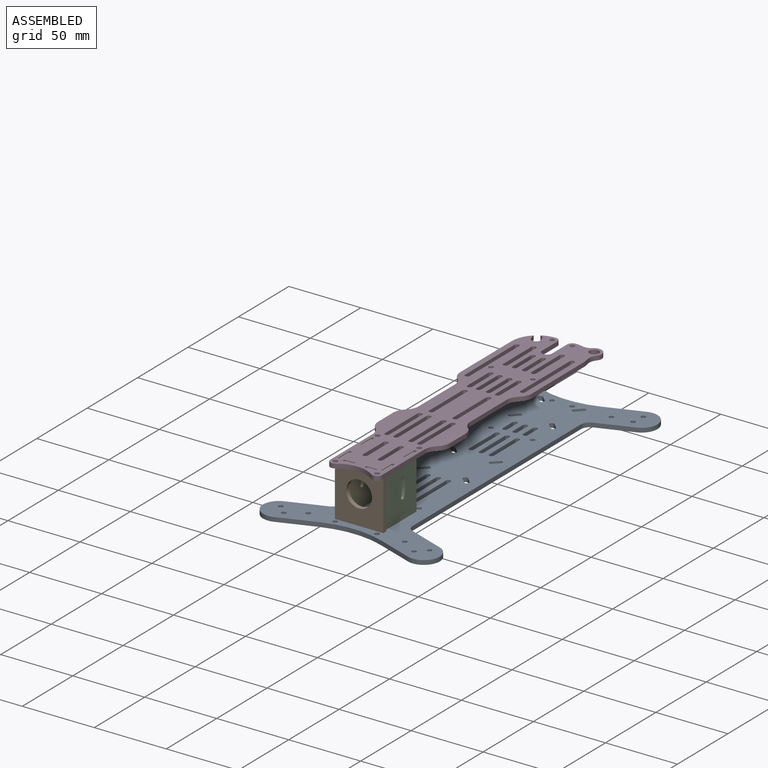
[diagram: assembled view]
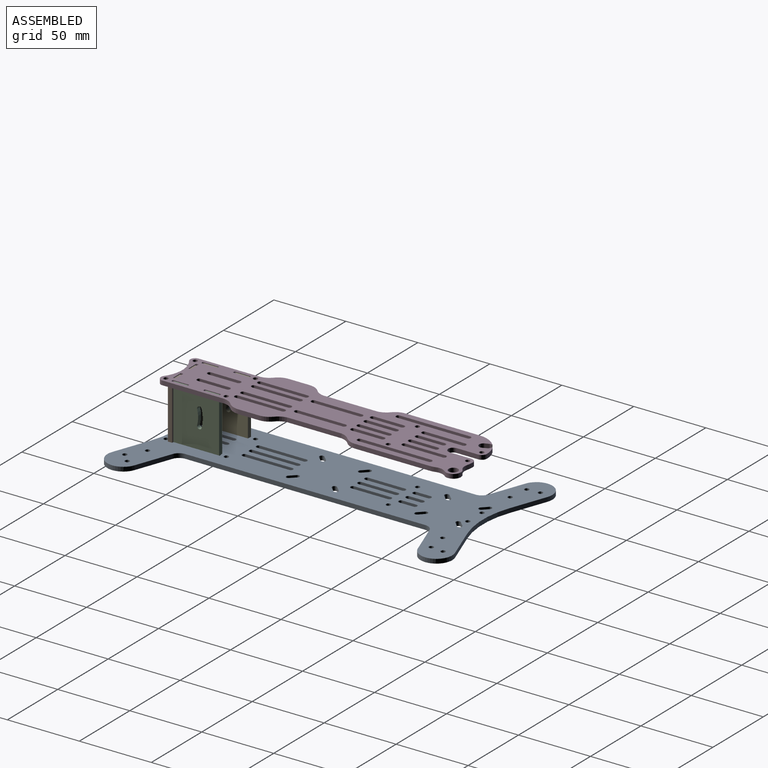
[diagram: assembled view, second angle]
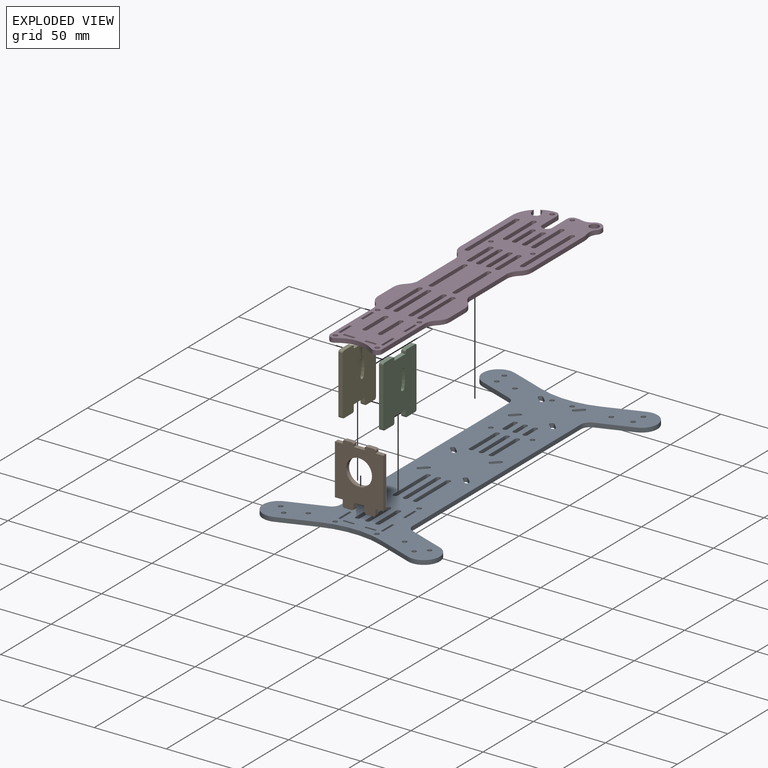
[diagram: exploded view]
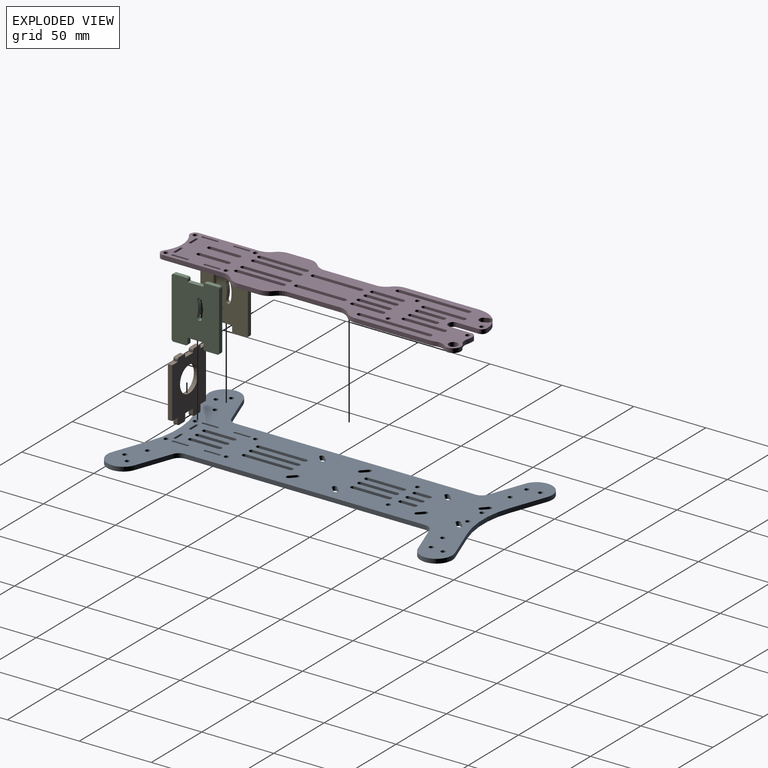
[diagram: exploded view, second angle]
ASSEMBLY  parts=5 mates=4
PART A: 146 faces, bbox 122.7x239x3 mm
  f0: cylinder r=1.57mm len=3.15mm, axis (0,0,-1), area 14.8mm2, adj f1,f99,f144,f145
  f1: plane 25.48x3mm, normal (1,0,0), area 76.4mm2, adj f0,f2,f144,f145
  f2: cylinder r=1.57mm len=3.15mm, axis (0,0,-1), area 14.8mm2, adj f1,f99,f144,f145
  f3: plane 25.48x3mm, normal (1,0,0), area 76.4mm2, adj f4,f100,f144,f145
  f4: cylinder r=1.57mm len=3.15mm, axis (0,0,-1), area 14.8mm2, adj f3,f5,f144,f145
  f5: plane 25.48x3mm, normal (-1,0,0), area 76.4mm2, adj f4,f100,f144,f145
  f6: plane 25.48x3mm, normal (1,0,0), area 76.4mm2, adj f7,f101,f144,f145
  f7: cylinder r=1.57mm len=3.15mm, axis (0,0,-1), area 14.8mm2, adj f6,f8,f144,f145
  f8: plane 25.48x3mm, normal (-1,0,0), area 76.4mm2, adj f7,f101,f144,f145
  f9: cylinder r=1.57mm len=3.15mm, axis (0,0,-1), area 14.8mm2, adj f10,f102,f144,f145
  f10: plane 9.78x3mm, normal (-1,0,0), area 29.4mm2, adj f9,f11,f144,f145
  f11: cylinder r=1.57mm len=3.15mm, axis (0,0,-1), area 14.8mm2, adj f10,f102,f144,f145
  f12: cylinder r=1.57mm len=3mm, axis (0,0,-1), area 14.8mm2, adj f13,f106,f144,f145
  f13: plane 3.54x3.54mm, normal (0.71,0.71,0), area 15mm2, adj f12,f14,f144,f145
  f14: cylinder r=1.57mm len=3mm, axis (0,0,-1), area 14.8mm2, adj f13,f106,f144,f145
  f15: cylinder r=1.57mm len=3mm, axis (0,0,-1), area 14.8mm2, adj f16,f108,f144,f145
  f16: plane 3.54x3.54mm, normal (0.71,0.71,0), area 15mm2, adj f15,f17,f144,f145
  f17: cylinder r=1.57mm len=3mm, axis (0,0,-1), area 14.8mm2, adj f16,f108,f144,f145
  f18: plane 3.54x3.54mm, normal (-0.71,0.71,0), area 15mm2, adj f19,f109,f144,f145
  f19: cylinder r=1.57mm len=3mm, axis (0,0,-1), area 14.8mm2, adj f18,f20,f144,f145
  f20: plane 3.54x3.54mm, normal (0.71,-0.71,0), area 15mm2, adj f19,f109,f144,f145
  f21: plane 20.23x3mm, normal (1,0,0), area 60.7mm2, adj f22,f116,f144,f145
  f22: cylinder r=1.57mm len=3.15mm, axis (0,0,-1), area 14.8mm2, adj f21,f23,f144,f145
  f23: plane 20.23x3mm, normal (-1,0,0), area 60.7mm2, adj f22,f116,f144,f145
  f24: plane 3.54x3.54mm, normal (-0.71,0.71,0), area 15mm2, adj f25,f120,f144,f145
  f25: cylinder r=1.57mm len=3mm, axis (0,0,-1), area 14.8mm2, adj f24,f26,f144,f145
  f26: plane 3.54x3.54mm, normal (0.71,-0.71,0), area 15mm2, adj f25,f120,f144,f145
  f27: cylinder r=1.57mm len=3.15mm, axis (0,0,-1), area 14.8mm2, adj f28,f121,f144,f145
  f28: plane 32.3x3mm, normal (-1,0,0), area 96.9mm2, adj f27,f29,f144,f145
  f29: cylinder r=1.57mm len=3.15mm, axis (0,0,-1), area 14.8mm2, adj f28,f121,f144,f145
  f30: plane 32.3x3mm, normal (-1,0,0), area 96.9mm2, adj f31,f122,f144,f145
  f31: cylinder r=1.57mm len=3.15mm, axis (0,0,-1), area 14.8mm2, adj f30,f32,f144,f145
  f32: plane 32.3x3mm, normal (1,0,0), area 96.9mm2, adj f31,f122,f144,f145
  f33: cylinder r=1.57mm len=3.15mm, axis (0,0,-1), area 14.8mm2, adj f34,f123,f144,f145
  f34: plane 32.3x3mm, normal (1,0,0), area 96.9mm2, adj f33,f35,f144,f145
  f35: cylinder r=1.57mm len=3.15mm, axis (0,0,-1), area 14.8mm2, adj f34,f123,f144,f145
  f36: plane 3x1.65mm, normal (0,1,0), area 4.9mm2, adj f37,f124,f144,f145
  f37: plane 11.3x3mm, normal (1,0,0), area 33.9mm2, adj f36,f38,f144,f145
  f38: plane 3x1.65mm, normal (0,-1,0), area 4.9mm2, adj f37,f124,f144,f145
  f39: plane 3x1.65mm, normal (0,1,0), area 4.9mm2, adj f40,f125,f144,f145
  f40: plane 11.3x3mm, normal (1,0,0), area 33.9mm2, adj f39,f41,f144,f145
  f41: plane 3x1.65mm, normal (0,-1,0), area 4.9mm2, adj f40,f125,f144,f145
  f42: cylinder r=1.57mm len=3mm, axis (0,0,-1), area 14.8mm2, adj f43,f127,f144,f145
  f43: plane 3.54x3.54mm, normal (-0.71,-0.71,0), area 15mm2, adj f42,f44,f144,f145
  f44: cylinder r=1.57mm len=3mm, axis (0,0,-1), area 14.8mm2, adj f43,f127,f144,f145
  f45: plane 3.54x3.54mm, normal (0.71,-0.71,0), area 15mm2, adj f46,f128,f144,f145
  f46: cylinder r=1.57mm len=3mm, axis (0,0,-1), area 14.8mm2, adj f45,f47,f144,f145
  f47: plane 3.54x3.54mm, normal (-0.71,0.71,0), area 15mm2, adj f46,f128,f144,f145
  f48: cylinder r=1.57mm len=3.15mm, axis (0,0,-1), area 14.8mm2, adj f49,f129,f144,f145
  f49: plane 9.78x3mm, normal (-1,0,0), area 29.4mm2, adj f48,f50,f144,f145
  f50: cylinder r=1.57mm len=3.15mm, axis (0,0,-1), area 14.8mm2, adj f49,f129,f144,f145
  f51: plane 9.78x3mm, normal (1,0,0), area 29.4mm2, adj f52,f130,f144,f145
  f52: cylinder r=1.57mm len=3.15mm, axis (0,0,-1), area 14.8mm2, adj f51,f53,f144,f145
  f53: plane 9.78x3mm, normal (-1,0,0), area 29.4mm2, adj f52,f130,f144,f145
  f54: plane 3.54x3.54mm, normal (0.71,0.71,0), area 15mm2, adj f55,f131,f144,f145
  f55: cylinder r=1.57mm len=3mm, axis (0,0,-1), area 14.8mm2, adj f54,f56,f144,f145
  f56: plane 3.54x3.54mm, normal (-0.71,-0.71,0), area 15mm2, adj f55,f131,f144,f145
  f57: cylinder r=1.57mm len=3mm, axis (0,0,-1), area 14.8mm2, adj f58,f132,f144,f145
  f58: plane 3.54x3.54mm, normal (0.71,-0.71,0), area 15mm2, adj f57,f59,f144,f145
  f59: cylinder r=1.57mm len=3mm, axis (0,0,-1), area 14.8mm2, adj f58,f132,f144,f145
  f60: plane 24.31x8.85mm, normal (0.34,-0.94,0), area 77.6mm2, adj f61,f136,f144,f145
  f61: cylinder r=11mm len=21.34mm, axis (0,0,-1), area 103.7mm2, adj f60,f62,f144,f145
  f62: plane 24.99x9.1mm, normal (-0.34,0.94,0), area 79.8mm2, adj f61,f63,f144,f145
  f63: cylinder r=61.1mm len=41.79mm, axis (0,0,-1), area 128mm2, adj f62,f64,f144,f145
  f64: plane 24.99x9.1mm, normal (0.34,0.94,0), area 79.8mm2, adj f63,f65,f144,f145
  f65: cylinder r=11mm len=21.34mm, axis (0,0,-1), area 103.7mm2, adj f64,f66,f144,f145
  f66: plane 24.31x8.85mm, normal (-0.34,-0.94,0), area 77.6mm2, adj f65,f67,f144,f145
  f67: cylinder r=6.24mm len=5.86mm, axis (0,0,-1), area 22.9mm2, adj f66,f68,f144,f145
  f68: plane 166.67x3mm, normal (-1,0,0), area 500mm2, adj f67,f69,f144,f145
  f69: cylinder r=6.24mm len=5.86mm, axis (0,0,-1), area 22.9mm2, adj f68,f70,f144,f145
  f70: plane 24.99x9.1mm, normal (-0.34,0.94,0), area 79.8mm2, adj f69,f71,f144,f145
  f71: cylinder r=11mm len=21.34mm, axis (0,0,-1), area 103.7mm2, adj f70,f72,f144,f145
  f72: plane 24.99x9.1mm, normal (0.34,-0.94,0), area 79.8mm2, adj f71,f73,f144,f145
  f73: cylinder r=63.1mm len=43.16mm, axis (0,0,-1), area 132.1mm2, adj f72,f74,f144,f145
  f74: plane 24.99x9.1mm, normal (-0.34,-0.94,0), area 79.8mm2, adj f73,f75,f144,f145
  f75: cylinder r=11mm len=21.34mm, axis (0,0,-1), area 103.7mm2, adj f74,f76,f144,f145
  f76: plane 24.99x9.1mm, normal (0.34,0.94,0), area 79.8mm2, adj f75,f77,f144,f145
  f77: cylinder r=6.24mm len=5.86mm, axis (0,0,-1), area 22.9mm2, adj f76,f78,f144,f145
  f78: plane 166.67x3mm, normal (1,0,0), area 500mm2, adj f77,f136,f144,f145
  f79: plane 3x1.65mm, normal (1,0,0), area 5mm2, adj f80,f137,f144,f145
  f80: plane 7.65x3mm, normal (0,-1,0), area 23mm2, adj f79,f81,f144,f145
  f81: plane 3x1.65mm, normal (-1,0,0), area 5mm2, adj f80,f137,f144,f145
  f82: plane 20.23x3mm, normal (-1,0,0), area 60.7mm2, adj f83,f138,f144,f145
  f83: cylinder r=1.57mm len=3.15mm, axis (0,0,-1), area 14.8mm2, adj f82,f84,f144,f145
  f84: plane 20.23x3mm, normal (1,0,0), area 60.7mm2, adj f83,f138,f144,f145
  f85: plane 7.65x3mm, normal (0,-1,0), area 23mm2, adj f86,f139,f144,f145
  f86: plane 3x1.65mm, normal (-1,0,0), area 5mm2, adj f85,f87,f144,f145
  f87: plane 7.65x3mm, normal (0,1,0), area 23mm2, adj f86,f139,f144,f145
  f88: plane 11.3x3mm, normal (-1,0,0), area 33.9mm2, adj f89,f140,f144,f145
  f89: plane 3x1.65mm, normal (0,1,0), area 4.9mm2, adj f88,f90,f144,f145
  f90: plane 11.3x3mm, normal (1,0,0), area 33.9mm2, adj f89,f140,f144,f145
  f91: plane 3x1.65mm, normal (0,-1,0), area 4.9mm2, adj f92,f141,f144,f145
  f92: plane 11.3x3mm, normal (-1,0,0), area 33.9mm2, adj f91,f93,f144,f145
  f93: plane 3x1.65mm, normal (0,1,0), area 4.9mm2, adj f92,f141,f144,f145
  f94: cylinder r=1.57mm len=3.15mm, axis (0,0,-1), area 14.8mm2, adj f95,f142,f144,f145
  f95: plane 20.23x3mm, normal (-1,0,0), area 60.7mm2, adj f94,f96,f144,f145
  f96: cylinder r=1.57mm len=3.15mm, axis (0,0,-1), area 14.8mm2, adj f95,f142,f144,f145
  f97: cylinder r=1.57mm len=3.15mm, axis (0,0,-1), area 29.7mm2, adj f144,f145
  f98: cylinder r=1.57mm len=3.15mm, axis (0,0,-1), area 29.7mm2, adj f144,f145
  f99: plane 25.48x3mm, normal (-1,0,0), area 76.4mm2, adj f0,f2,f144,f145
  f100: cylinder r=1.57mm len=3.15mm, axis (0,0,-1), area 14.8mm2, adj f3,f5,f144,f145
  f101: cylinder r=1.57mm len=3.15mm, axis (0,0,-1), area 14.8mm2, adj f6,f8,f144,f145
  f102: plane 9.78x3mm, normal (1,0,0), area 29.4mm2, adj f9,f11,f144,f145
  f103: cylinder r=1.57mm len=3.15mm, axis (0,0,-1), area 29.7mm2, adj f144,f145
  f104: cylinder r=1.57mm len=3.15mm, axis (0,0,-1), area 29.7mm2, adj f144,f145
  f105: cylinder r=1.57mm len=3.15mm, axis (0,0,-1), area 29.7mm2, adj f144,f145
  f106: plane 3.54x3.54mm, normal (-0.71,-0.71,0), area 15mm2, adj f12,f14,f144,f145
  f107: cylinder r=1.57mm len=3.15mm, axis (0,0,-1), area 29.7mm2, adj f144,f145
  f108: plane 3.54x3.54mm, normal (-0.71,-0.71,0), area 15mm2, adj f15,f17,f144,f145
  f109: cylinder r=1.57mm len=3mm, axis (0,0,-1), area 14.8mm2, adj f18,f20,f144,f145
  f110: cylinder r=1.57mm len=3.15mm, axis (0,0,-1), area 29.7mm2, adj f144,f145
  f111: cylinder r=1.57mm len=3.15mm, axis (0,0,-1), area 29.7mm2, adj f144,f145
  f112: cylinder r=1.57mm len=3.15mm, axis (0,0,-1), area 29.7mm2, adj f144,f145
  f113: cylinder r=1.57mm len=3.15mm, axis (0,0,-1), area 29.7mm2, adj f144,f145
  f114: cylinder r=1.57mm len=3.15mm, axis (0,0,-1), area 29.7mm2, adj f144,f145
  f115: cylinder r=1.57mm len=3.15mm, axis (0,0,-1), area 29.7mm2, adj f144,f145
  f116: cylinder r=1.57mm len=3.15mm, axis (0,0,-1), area 14.8mm2, adj f21,f23,f144,f145
  f117: cylinder r=1.57mm len=3.15mm, axis (0,0,-1), area 29.7mm2, adj f144,f145
  f118: cylinder r=1.57mm len=3.15mm, axis (0,0,-1), area 29.7mm2, adj f144,f145
  f119: cylinder r=1.57mm len=3.15mm, axis (0,0,-1), area 29.7mm2, adj f144,f145
  f120: cylinder r=1.57mm len=3mm, axis (0,0,-1), area 14.8mm2, adj f24,f26,f144,f145
  f121: plane 32.3x3mm, normal (1,0,0), area 96.9mm2, adj f27,f29,f144,f145
  f122: cylinder r=1.57mm len=3.15mm, axis (0,0,-1), area 14.8mm2, adj f30,f32,f144,f145
  f123: plane 32.3x3mm, normal (-1,0,0), area 96.9mm2, adj f33,f35,f144,f145
  f124: plane 11.3x3mm, normal (-1,0,0), area 33.9mm2, adj f36,f38,f144,f145
  f125: plane 11.3x3mm, normal (-1,0,0), area 33.9mm2, adj f39,f41,f144,f145
  f126: cylinder r=1.57mm len=3.15mm, axis (0,0,-1), area 29.7mm2, adj f144,f145
  f127: plane 3.54x3.54mm, normal (0.71,0.71,0), area 15mm2, adj f42,f44,f144,f145
  f128: cylinder r=1.57mm len=3mm, axis (0,0,-1), area 14.8mm2, adj f45,f47,f144,f145
  f129: plane 9.78x3mm, normal (1,0,0), area 29.4mm2, adj f48,f50,f144,f145
  f130: cylinder r=1.57mm len=3.15mm, axis (0,0,-1), area 14.8mm2, adj f51,f53,f144,f145
  f131: cylinder r=1.57mm len=3mm, axis (0,0,-1), area 14.8mm2, adj f54,f56,f144,f145
  f132: plane 3.54x3.54mm, normal (-0.71,0.71,0), area 15mm2, adj f57,f59,f144,f145
  f133: cylinder r=1.57mm len=3.15mm, axis (0,0,-1), area 29.7mm2, adj f144,f145
  f134: cylinder r=1.57mm len=3.15mm, axis (0,0,-1), area 29.7mm2, adj f144,f145
  f135: cylinder r=1.57mm len=3.15mm, axis (0,0,-1), area 29.7mm2, adj f144,f145
  f136: cylinder r=6.24mm len=5.86mm, axis (0,0,-1), area 22.9mm2, adj f60,f78,f144,f145
  f137: plane 7.65x3mm, normal (0,1,0), area 23mm2, adj f79,f81,f144,f145
  f138: cylinder r=1.57mm len=3.15mm, axis (0,0,-1), area 14.8mm2, adj f82,f84,f144,f145
  f139: plane 3x1.65mm, normal (1,0,0), area 5mm2, adj f85,f87,f144,f145
  f140: plane 3x1.65mm, normal (0,-1,0), area 4.9mm2, adj f88,f90,f144,f145
  f141: plane 11.3x3mm, normal (1,0,0), area 33.9mm2, adj f91,f93,f144,f145
  f142: plane 20.23x3mm, normal (1,0,0), area 60.7mm2, adj f94,f96,f144,f145
  f143: cylinder r=1.57mm len=3.15mm, axis (0,0,-1), area 29.7mm2, adj f144,f145
  f144: plane 239.01x122.67mm, normal (0,0,1), area 12518.7mm2, adj f0,f1,f2,f3,f4,f5,f6,f7
  f145: plane 239.01x122.67mm, normal (0,0,-1), area 12518.7mm2, adj f0,f1,f2,f3,f4,f5,f6,f7
PART B: 31 faces, bbox 33.6x3x42.5 mm
  f0: plane 5.45x3mm, normal (0,0,-1), area 16.3mm2, adj f1,f27,f29,f30
  f1: plane 35x3mm, normal (1,0,0), area 105mm2, adj f0,f2,f29,f30
  f2: plane 5.45x3mm, normal (0,0,1), area 16.3mm2, adj f1,f3,f29,f30
  f3: plane 3x1.25mm, normal (1,0,0), area 3.7mm2, adj f2,f4,f29,f30
  f4: cylinder r=1.25mm len=3mm, axis (0,1,0), area 5.9mm2, adj f3,f5,f29,f30
  f5: plane 5x3mm, normal (0,0,1), area 15mm2, adj f4,f6,f29,f30
  f6: cylinder r=1.25mm len=3mm, axis (0,1,0), area 5.9mm2, adj f5,f7,f29,f30
  f7: plane 3x1.25mm, normal (-1,0,0), area 3.7mm2, adj f6,f8,f29,f30
  f8: plane 7.7x3mm, normal (0,0,1), area 23.1mm2, adj f7,f9,f29,f30
  f9: plane 3x1.25mm, normal (1,0,0), area 3.7mm2, adj f8,f10,f29,f30
  f10: cylinder r=1.25mm len=3mm, axis (0,1,0), area 5.9mm2, adj f9,f11,f29,f30
  f11: plane 5x3mm, normal (0,0,1), area 15mm2, adj f10,f12,f29,f30
  f12: cylinder r=1.25mm len=3mm, axis (0,1,0), area 5.9mm2, adj f11,f13,f29,f30
  f13: plane 3x1.25mm, normal (-1,0,0), area 3.7mm2, adj f12,f14,f29,f30
  f14: plane 5.45x3mm, normal (0,0,1), area 16.3mm2, adj f13,f15,f29,f30
  f15: plane 35x3mm, normal (-1,0,0), area 105mm2, adj f14,f16,f29,f30
  f16: plane 5.45x3mm, normal (0,0,-1), area 16.3mm2, adj f15,f17,f29,f30
  f17: plane 3.75x3mm, normal (-1,0,0), area 11.2mm2, adj f16,f18,f29,f30
  f18: cylinder r=1.25mm len=3mm, axis (0,1,0), area 5.9mm2, adj f17,f19,f29,f30
  f19: plane 5x3mm, normal (0,0,-1), area 15mm2, adj f18,f20,f29,f30
  f20: cylinder r=1.25mm len=3mm, axis (0,1,0), area 5.9mm2, adj f19,f21,f29,f30
  f21: plane 3.75x3mm, normal (1,0,0), area 11.2mm2, adj f20,f22,f29,f30
  f22: plane 7.7x3mm, normal (0,0,-1), area 23.1mm2, adj f21,f23,f29,f30
  f23: plane 3.75x3mm, normal (-1,0,0), area 11.2mm2, adj f22,f24,f29,f30
  f24: cylinder r=1.25mm len=3mm, axis (0,1,0), area 5.9mm2, adj f23,f25,f29,f30
  f25: plane 5x3mm, normal (0,0,-1), area 15mm2, adj f24,f26,f29,f30
  f26: cylinder r=1.25mm len=3mm, axis (0,1,0), area 5.9mm2, adj f25,f27,f29,f30
  f27: plane 3.75x3mm, normal (1,0,0), area 11.2mm2, adj f0,f26,f29,f30
  f28: cylinder r=9mm len=18mm, axis (0,1,0), area 169.6mm2, adj f29,f30
  f29: plane 42.5x33.6mm, normal (0,-1,0), area 1031.3mm2, adj f0,f1,f2,f3,f4,f5,f6,f7
  f30: plane 42.5x33.6mm, normal (0,1,0), area 1031.3mm2, adj f0,f1,f2,f3,f4,f5,f6,f7
PART C: 29 faces, bbox 3x33x42.5 mm
  f0: plane 11x3mm, normal (0,0,-1), area 33mm2, adj f1,f26,f27,f28
  f1: plane 3.75x3mm, normal (0,-1,0), area 11.3mm2, adj f0,f2,f27,f28
  f2: cylinder r=1.25mm len=3mm, axis (-1,0,0), area 6.1mm2, adj f1,f3,f27,f28
  f3: plane 8.5x3mm, normal (0,0,-1), area 25.5mm2, adj f2,f4,f27,f28
  f4: cylinder r=1.25mm len=3mm, axis (-1,0,0), area 5.7mm2, adj f3,f5,f27,f28
  f5: plane 40x3mm, normal (0,1,0), area 120mm2, adj f4,f6,f27,f28
  f6: cylinder r=1.25mm len=3mm, axis (-1,0,0), area 5.9mm2, adj f5,f7,f27,f28
  f7: plane 8.5x3mm, normal (0,0,1), area 25.5mm2, adj f6,f8,f27,f28
  f8: cylinder r=1.25mm len=3mm, axis (-1,0,0), area 5.9mm2, adj f7,f9,f27,f28
  f9: plane 3x1.25mm, normal (0,-1,0), area 3.7mm2, adj f8,f10,f27,f28
  f10: plane 11x3mm, normal (0,0,1), area 33mm2, adj f9,f11,f27,f28
  f11: plane 3x1.25mm, normal (0,1,0), area 3.7mm2, adj f10,f12,f27,f28
  f12: cylinder r=1.25mm len=3mm, axis (-1,0,0), area 5.9mm2, adj f11,f13,f27,f28
  f13: plane 8.5x3mm, normal (0,0,1), area 25.5mm2, adj f12,f14,f27,f28
  f14: cylinder r=1.25mm len=3mm, axis (-1,0,0), area 5.9mm2, adj f13,f15,f27,f28
  f15: plane 40x3mm, normal (0,-1,0), area 120mm2, adj f14,f16,f27,f28
  f16: cylinder r=1.25mm len=3mm, axis (-1,0,0), area 5.9mm2, adj f15,f17,f27,f28
  f17: plane 8.5x3mm, normal (0,0,-1), area 25.5mm2, adj f16,f18,f27,f28
  f18: cylinder r=1.25mm len=3mm, axis (-1,0,0), area 5.9mm2, adj f17,f26,f27,f28
  f19: plane 3x0.03mm, normal (0,0.28,-0.96), area 0.1mm2, adj f20,f24,f27,f28
  f20: plane 3x0.02mm, normal (0,-0.28,-0.96), area 0.1mm2, adj f19,f24,f27,f28
  f21: cylinder r=18.38mm len=10.12mm, axis (-1,0,0), area 30.7mm2, adj f22,f25,f27,f28
  f22: cylinder r=1.62mm len=3.19mm, axis (-1,0,0), area 15.3mm2, adj f21,f23,f27,f28
  f23: cylinder r=21.64mm len=11.91mm, axis (-1,0,0), area 36.2mm2, adj f22,f25,f27,f28
  f24: plane 3x0.05mm, normal (0,-0.02,1), area 0.2mm2, adj f19,f20,f27,f28
  f25: cylinder r=1.62mm len=3.19mm, axis (-1,0,0), area 15.3mm2, adj f21,f23,f27,f28
  f26: plane 3.75x3mm, normal (0,1,0), area 11.3mm2, adj f0,f18,f27,f28
  f27: plane 42.5x33mm, normal (1,0,0), area 1272.8mm2, adj f0,f1,f2,f3,f4,f5,f6,f7
  f28: plane 42.5x33mm, normal (-1,0,0), area 1272.8mm2, adj f0,f1,f2,f3,f4,f5,f6,f7
PART D: 151 faces, bbox 52.1x213.5x3 mm
  f0: plane 20.83x3mm, normal (1,0,0), area 62.5mm2, adj f1,f148,f149,f150
  f1: cylinder r=1.57mm len=3.15mm, axis (0,0,-1), area 14.8mm2, adj f0,f2,f149,f150
  f2: plane 20.83x3mm, normal (-1,0,0), area 62.5mm2, adj f1,f148,f149,f150
  f3: plane 18.07x3mm, normal (1,0,0), area 54.2mm2, adj f4,f115,f149,f150
  f4: cylinder r=1.57mm len=3.15mm, axis (0,0,-1), area 14.8mm2, adj f3,f5,f149,f150
  f5: plane 18.07x3mm, normal (-1,0,0), area 54.2mm2, adj f4,f115,f149,f150
  f6: plane 20.83x3mm, normal (-1,0,0), area 62.5mm2, adj f7,f116,f149,f150
  f7: cylinder r=1.57mm len=3.15mm, axis (0,0,-1), area 14.8mm2, adj f6,f8,f149,f150
  f8: plane 20.83x3mm, normal (1,0,0), area 62.5mm2, adj f7,f116,f149,f150
  f9: cylinder r=1.57mm len=3.15mm, axis (0,0,-1), area 14.8mm2, adj f10,f117,f149,f150
  f10: plane 49x3mm, normal (1,0,0), area 147mm2, adj f9,f11,f149,f150
  f11: cylinder r=1.57mm len=3.15mm, axis (0,0,-1), area 14.8mm2, adj f10,f117,f149,f150
  f12: cylinder r=1.65mm len=3.3mm, axis (0,0,-1), area 18.5mm2, adj f13,f118,f149,f150
  f13: plane 27.29x3mm, normal (-1,0,0), area 81.9mm2, adj f12,f14,f149,f150
  f14: cylinder r=1.57mm len=3.15mm, axis (0,0,-1), area 14.8mm2, adj f13,f118,f149,f150
  f15: plane 20.83x3mm, normal (-1,0,0), area 62.5mm2, adj f16,f121,f149,f150
  f16: cylinder r=1.57mm len=3.15mm, axis (0,0,-1), area 14.8mm2, adj f15,f17,f149,f150
  f17: plane 20.83x3mm, normal (1,0,0), area 62.5mm2, adj f16,f121,f149,f150
  f18: plane 27.29x3mm, normal (-1,0,0), area 81.9mm2, adj f19,f122,f149,f150
  f19: cylinder r=1.57mm len=3.15mm, axis (0,0,-1), area 14.8mm2, adj f18,f20,f149,f150
  f20: plane 27.29x3mm, normal (1,0,0), area 81.9mm2, adj f19,f122,f149,f150
  f21: plane 20.83x3mm, normal (-1,0,0), area 62.5mm2, adj f22,f123,f149,f150
  f22: cylinder r=1.57mm len=3.15mm, axis (0,0,-1), area 14.8mm2, adj f21,f23,f149,f150
  f23: plane 20.83x3mm, normal (1,0,0), area 62.5mm2, adj f22,f123,f149,f150
  f24: plane 49x3mm, normal (-1,0,0), area 147mm2, adj f25,f124,f149,f150
  f25: cylinder r=1.57mm len=3.15mm, axis (0,0,-1), area 14.8mm2, adj f24,f26,f149,f150
  f26: plane 49x3mm, normal (1,0,0), area 147mm2, adj f25,f124,f149,f150
  f27: plane 18.07x3mm, normal (-1,0,0), area 54.2mm2, adj f28,f125,f149,f150
  f28: cylinder r=1.57mm len=3.15mm, axis (0,0,-1), area 14.8mm2, adj f27,f29,f149,f150
  f29: plane 18.07x3mm, normal (1,0,0), area 54.2mm2, adj f28,f125,f149,f150
  f30: plane 20.25x3mm, normal (1,0,0), area 60.8mm2, adj f31,f129,f149,f150
  f31: cylinder r=1.57mm len=3.15mm, axis (0,0,-1), area 14.8mm2, adj f30,f32,f149,f150
  f32: plane 20.25x3mm, normal (-1,0,0), area 60.8mm2, adj f31,f129,f149,f150
  f33: plane 11.3x3mm, normal (-1,0,0), area 33.9mm2, adj f34,f130,f149,f150
  f34: plane 3x1.65mm, normal (0,1,0), area 5mm2, adj f33,f35,f149,f150
  f35: plane 11.3x3mm, normal (1,0,0), area 33.9mm2, adj f34,f130,f149,f150
  f36: plane 7.65x3mm, normal (0,-1,0), area 22.9mm2, adj f37,f131,f149,f150
  f37: plane 3x1.65mm, normal (-1,0,0), area 4.9mm2, adj f36,f38,f149,f150
  f38: plane 7.65x3mm, normal (0,1,0), area 22.9mm2, adj f37,f131,f149,f150
  f39: plane 11.3x3mm, normal (-1,0,0), area 33.9mm2, adj f40,f133,f149,f150
  f40: plane 3x1.65mm, normal (0,1,0), area 5mm2, adj f39,f41,f149,f150
  f41: plane 11.3x3mm, normal (1,0,0), area 33.9mm2, adj f40,f133,f149,f150
  f42: plane 7.65x3mm, normal (0,-1,0), area 22.9mm2, adj f43,f134,f149,f150
  f43: plane 3x1.65mm, normal (-1,0,0), area 4.9mm2, adj f42,f44,f149,f150
  f44: plane 7.65x3mm, normal (0,1,0), area 22.9mm2, adj f43,f134,f149,f150
  f45: cylinder r=1.57mm len=3.15mm, axis (0,0,-1), area 14.8mm2, adj f46,f136,f149,f150
  f46: plane 32.41x3mm, normal (-1,0,0), area 97.2mm2, adj f45,f47,f149,f150
  f47: cylinder r=1.57mm len=3.15mm, axis (0,0,-1), area 14.8mm2, adj f46,f136,f149,f150
  f48: plane 32.41x3mm, normal (1,0,0), area 97.2mm2, adj f49,f137,f149,f150
  f49: cylinder r=1.57mm len=3.15mm, axis (0,0,-1), area 14.8mm2, adj f48,f50,f149,f150
  f50: plane 32.41x3mm, normal (-1,0,0), area 97.2mm2, adj f49,f137,f149,f150
  f51: plane 3x1.65mm, normal (0,1,0), area 5mm2, adj f52,f138,f149,f150
  f52: plane 11.3x3mm, normal (1,0,0), area 33.9mm2, adj f51,f53,f149,f150
  f53: plane 3x1.65mm, normal (0,-1,0), area 5mm2, adj f52,f138,f149,f150
  f54: plane 11.3x3mm, normal (1,0,0), area 33.9mm2, adj f55,f140,f149,f150
  f55: plane 3x1.65mm, normal (0,-1,0), area 5mm2, adj f54,f56,f149,f150
  f56: plane 11.3x3mm, normal (-1,0,0), area 33.9mm2, adj f55,f140,f149,f150
  f57: plane 20.25x3mm, normal (1,0,0), area 60.8mm2, adj f58,f141,f149,f150
  f58: cylinder r=1.57mm len=3.15mm, axis (0,0,-1), area 14.8mm2, adj f57,f59,f149,f150
  f59: plane 20.25x3mm, normal (-1,0,0), area 60.8mm2, adj f58,f141,f149,f150
  f60: plane 33x3mm, normal (-1,0,0), area 99mm2, adj f61,f142,f149,f150
  f61: cylinder r=1.57mm len=3.15mm, axis (0,0,-1), area 14.8mm2, adj f60,f62,f149,f150
  f62: plane 33x3mm, normal (1,0,0), area 99mm2, adj f61,f142,f149,f150
  f63: plane 32.41x3mm, normal (1,0,0), area 97.2mm2, adj f64,f144,f149,f150
  f64: cylinder r=1.57mm len=3.15mm, axis (0,0,-1), area 14.8mm2, adj f63,f65,f149,f150
  f65: plane 32.41x3mm, normal (-1,0,0), area 97.2mm2, adj f64,f66,f149,f150
  f66: plane 3x0.08mm, normal (0,1,0), area 0.2mm2, adj f65,f67,f149,f150
  f67: cylinder r=1.5mm len=3mm, axis (0,0,-1), area 14.1mm2, adj f66,f144,f149,f150
  f68: cylinder r=1.57mm len=3.15mm, axis (0,0,-1), area 14.8mm2, adj f69,f145,f149,f150
  f69: plane 32.41x3mm, normal (1,0,0), area 97.2mm2, adj f68,f70,f149,f150
  f70: cylinder r=1.57mm len=3.15mm, axis (0,0,-1), area 14.8mm2, adj f69,f145,f149,f150
  f71: plane 14.66x3mm, normal (-1,0,0), area 44mm2, adj f72,f146,f149,f150
  f72: cylinder r=10.44mm len=7.8mm, axis (0,0,-1), area 26.4mm2, adj f71,f73,f149,f150
  f73: cylinder r=10.44mm len=7.8mm, axis (0,0,-1), area 26.4mm2, adj f72,f74,f149,f150
  f74: plane 41.85x3mm, normal (-1,0,0), area 125.5mm2, adj f73,f75,f149,f150
  f75: cylinder r=3.5mm len=5.55mm, axis (0,0,-1), area 23.1mm2, adj f74,f76,f149,f150
  f76: cylinder r=21.3mm len=24.91mm, axis (0,0,-1), area 79.8mm2, adj f75,f77,f149,f150
  f77: cylinder r=3.5mm len=5.55mm, axis (0,0,-1), area 23.1mm2, adj f76,f78,f149,f150
  f78: plane 41.85x3mm, normal (1,0,0), area 125.5mm2, adj f77,f79,f149,f150
  f79: cylinder r=10.44mm len=7.8mm, axis (0,0,-1), area 26.4mm2, adj f78,f80,f149,f150
  f80: cylinder r=10.44mm len=7.8mm, axis (0,0,-1), area 26.4mm2, adj f79,f81,f149,f150
  f81: plane 14.66x3mm, normal (1,0,0), area 44mm2, adj f80,f82,f149,f150
  f82: cylinder r=10.44mm len=7.8mm, axis (0,0,-1), area 26.4mm2, adj f81,f83,f149,f150
  f83: cylinder r=10.78mm len=6.5mm, axis (0,0,-1), area 22.6mm2, adj f82,f84,f149,f150
  f84: plane 38x3mm, normal (1,0,0), area 114mm2, adj f83,f85,f149,f150
  f85: cylinder r=10.78mm len=6.5mm, axis (0,0,-1), area 22.6mm2, adj f84,f86,f149,f150
  f86: cylinder r=10.44mm len=7.8mm, axis (0,0,-1), area 26.4mm2, adj f85,f87,f149,f150
  f87: plane 51.2x3mm, normal (1,0,0), area 153.6mm2, adj f86,f88,f149,f150
  f88: cylinder r=18mm len=4.67mm, axis (0,0,-1), area 14.2mm2, adj f87,f89,f149,f150
  f89: cylinder r=7.76mm len=6.49mm, axis (0,0,-1), area 20.4mm2, adj f88,f90,f149,f150
  f90: cylinder r=5.22mm len=8.91mm, axis (0,0,-1), area 49.2mm2, adj f89,f91,f149,f150
  f91: cylinder r=7.76mm len=6.49mm, axis (0,0,-1), area 20.4mm2, adj f90,f92,f149,f150
  f92: cylinder r=18mm len=4.67mm, axis (0,0,-1), area 14.2mm2, adj f91,f93,f149,f150
  f93: cylinder r=3.59mm len=3.59mm, axis (0,0,-1), area 16.9mm2, adj f92,f94,f149,f150
  f94: plane 15x3mm, normal (-1,0,0), area 45mm2, adj f93,f95,f149,f150
  f95: cylinder r=3.41mm len=6.82mm, axis (0,0,-1), area 32.1mm2, adj f94,f96,f149,f150
  f96: plane 15x3mm, normal (1,0,0), area 45mm2, adj f95,f97,f149,f150
  f97: cylinder r=3.59mm len=3.59mm, axis (0,0,-1), area 16.9mm2, adj f96,f98,f149,f150
  f98: cylinder r=18mm len=8.82mm, axis (0,0,-1), area 27.7mm2, adj f97,f99,f149,f150
  f99: cylinder r=0.22mm len=3mm, axis (0,0,-1), area 1.5mm2, adj f98,f100,f149,f150
  f100: cylinder r=3mm len=3mm, axis (0,0,-1), area 9.6mm2, adj f99,f101,f149,f150
  f101: plane 3x2.31mm, normal (-0.92,-0.39,0), area 7.5mm2, adj f100,f102,f149,f150
  f102: cylinder r=3mm len=5.77mm, axis (0,0,-1), area 28.3mm2, adj f101,f103,f149,f150
  f103: plane 3x2.31mm, normal (0.92,0.39,0), area 7.5mm2, adj f102,f104,f149,f150
  f104: cylinder r=3mm len=3mm, axis (0,0,-1), area 5.6mm2, adj f103,f105,f149,f150
  f105: cylinder r=0.2mm len=3mm, axis (0,0,-1), area 1.6mm2, adj f104,f106,f149,f150
  f106: cylinder r=18mm len=13.17mm, axis (0,0,-1), area 44.3mm2, adj f105,f107,f149,f150
  f107: plane 51.2x3mm, normal (-1,0,0), area 153.6mm2, adj f106,f108,f149,f150
  f108: cylinder r=10.44mm len=7.8mm, axis (0,0,-1), area 26.4mm2, adj f107,f109,f149,f150
  f109: cylinder r=10.78mm len=6.5mm, axis (0,0,-1), area 22.6mm2, adj f108,f110,f149,f150
  f110: plane 38x3mm, normal (-1,0,0), area 114mm2, adj f109,f111,f149,f150
  f111: cylinder r=10.78mm len=6.5mm, axis (0,0,-1), area 22.6mm2, adj f110,f146,f149,f150
  f112: cylinder r=1.57mm len=3.15mm, axis (0,0,-1), area 14.8mm2, adj f113,f147,f149,f150
  f113: plane 33x3mm, normal (1,0,0), area 99mm2, adj f112,f114,f149,f150
  f114: cylinder r=1.57mm len=3.15mm, axis (0,0,-1), area 14.8mm2, adj f113,f147,f149,f150
  f115: cylinder r=1.57mm len=3.15mm, axis (0,0,-1), area 14.8mm2, adj f3,f5,f149,f150
  f116: cylinder r=1.57mm len=3.15mm, axis (0,0,-1), area 14.8mm2, adj f6,f8,f149,f150
  f117: plane 49x3mm, normal (-1,0,0), area 147mm2, adj f9,f11,f149,f150
  f118: plane 27.29x3mm, normal (1,0,0), area 81.9mm2, adj f12,f14,f149,f150
  f119: cylinder r=1.57mm len=3.15mm, axis (0,0,-1), area 29.7mm2, adj f149,f150
  f120: cylinder r=3.25mm len=6.5mm, axis (0,0,-1), area 61.3mm2, adj f149,f150
  f121: cylinder r=1.57mm len=3.15mm, axis (0,0,-1), area 14.8mm2, adj f15,f17,f149,f150
  f122: cylinder r=1.65mm len=3.3mm, axis (0,0,-1), area 18.5mm2, adj f18,f20,f149,f150
  f123: cylinder r=1.57mm len=3.15mm, axis (0,0,-1), area 14.8mm2, adj f21,f23,f149,f150
  f124: cylinder r=1.57mm len=3.15mm, axis (0,0,-1), area 14.8mm2, adj f24,f26,f149,f150
  f125: cylinder r=1.57mm len=3.15mm, axis (0,0,-1), area 14.8mm2, adj f27,f29,f149,f150
  f126: cylinder r=1.57mm len=3.15mm, axis (0,0,-1), area 29.7mm2, adj f149,f150
  f127: cylinder r=1.57mm len=3.15mm, axis (0,0,-1), area 29.7mm2, adj f149,f150
  f128: cylinder r=1.57mm len=3.15mm, axis (0,0,-1), area 29.7mm2, adj f149,f150
  f129: cylinder r=1.57mm len=3.15mm, axis (0,0,-1), area 14.8mm2, adj f30,f32,f149,f150
  f130: plane 3x1.65mm, normal (0,-1,0), area 5mm2, adj f33,f35,f149,f150
  f131: plane 3x1.65mm, normal (1,0,0), area 4.9mm2, adj f36,f38,f149,f150
  f132: cylinder r=1.57mm len=3.15mm, axis (0,0,-1), area 29.7mm2, adj f149,f150
  f133: plane 3x1.65mm, normal (0,-1,0), area 5mm2, adj f39,f41,f149,f150
  f134: plane 3x1.65mm, normal (1,0,0), area 4.9mm2, adj f42,f44,f149,f150
  f135: cylinder r=1.57mm len=3.15mm, axis (0,0,-1), area 29.7mm2, adj f149,f150
  f136: plane 32.41x3mm, normal (1,0,0), area 97.2mm2, adj f45,f47,f149,f150
  f137: cylinder r=1.57mm len=3.15mm, axis (0,0,-1), area 14.8mm2, adj f48,f50,f149,f150
  f138: plane 11.3x3mm, normal (-1,0,0), area 33.9mm2, adj f51,f53,f149,f150
  f139: cylinder r=1.57mm len=3.15mm, axis (0,0,-1), area 29.7mm2, adj f149,f150
  f140: plane 3x1.65mm, normal (0,1,0), area 5mm2, adj f54,f56,f149,f150
  f141: cylinder r=1.57mm len=3.15mm, axis (0,0,-1), area 14.8mm2, adj f57,f59,f149,f150
  f142: cylinder r=1.57mm len=3.15mm, axis (0,0,-1), area 14.8mm2, adj f60,f62,f149,f150
  f143: cylinder r=1.57mm len=3.15mm, axis (0,0,-1), area 29.7mm2, adj f149,f150
  f144: plane 3x0.08mm, normal (0,1,0), area 0.2mm2, adj f63,f67,f149,f150
  f145: plane 32.41x3mm, normal (-1,0,0), area 97.2mm2, adj f68,f70,f149,f150
  f146: cylinder r=10.44mm len=7.8mm, axis (0,0,-1), area 26.4mm2, adj f71,f111,f149,f150
  f147: plane 33x3mm, normal (-1,0,0), area 99mm2, adj f112,f114,f149,f150
  f148: cylinder r=1.57mm len=3.15mm, axis (0,0,-1), area 14.8mm2, adj f0,f2,f149,f150
  f149: plane 213.47x52.07mm, normal (0,0,1), area 6832mm2, adj f0,f1,f2,f3,f4,f5,f6,f7
  f150: plane 213.47x52.07mm, normal (0,0,-1), area 6832mm2, adj f0,f1,f2,f3,f4,f5,f6,f7
PART E: same geometry as C
PLACE A t=(-134.63,-6.46,-18.25)mm
PLACE B t=(-129.78,-84.64,2.25)mm
PLACE C t=(-117.21,-69.34,2.25)mm
PLACE D t=(-129.71,-19.38,19.75)mm
PLACE E t=(-145.51,-69.19,2.25)mm
MATE fastened D.f150 <-> B.f14  axis (0,0,-1) through (-141.13,-87.64,19.75)mm
MATE fastened A.f144 <-> E.f0  axis (0,0,1) through (-145.51,-74.69,-15.25)mm
MATE fastened A.f144 <-> C.f0  axis (0,0,1) through (-114.21,-63.84,-15.25)mm
MATE fastened B.f0 <-> A.f144  axis (0,0,-1) through (-118.43,-87.64,-15.25)mm
